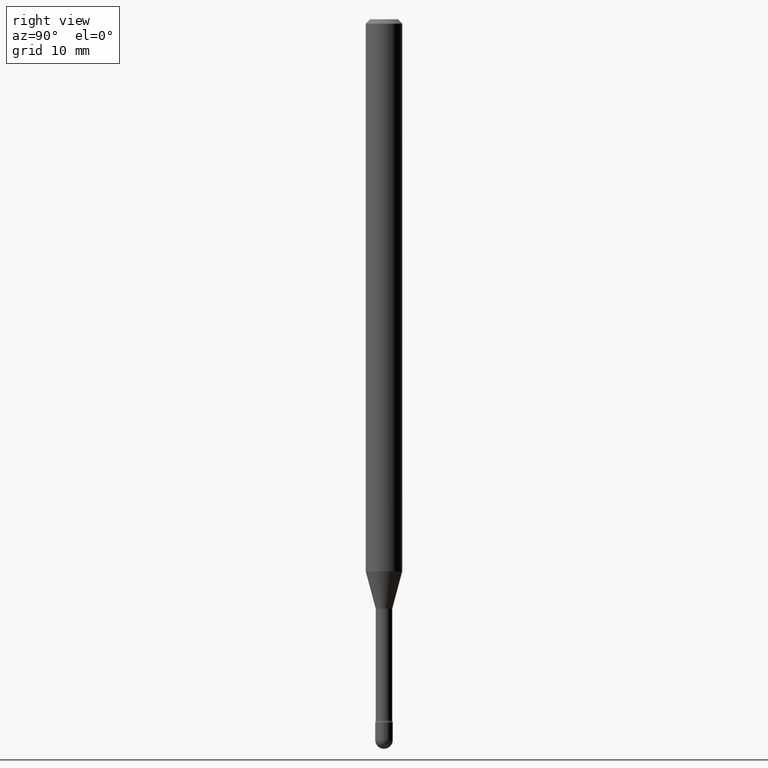
[diagram: clean part render]
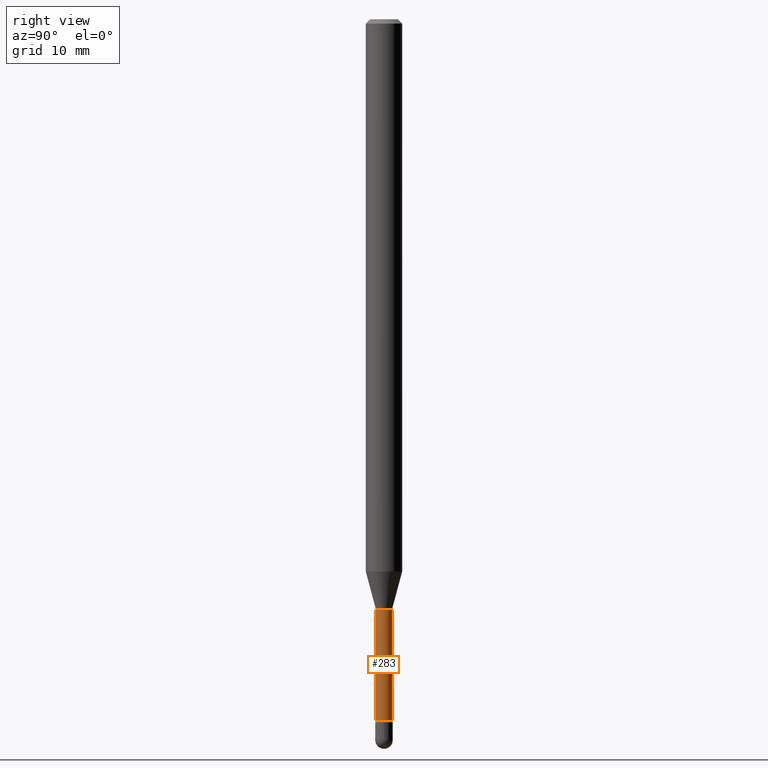
[diagram: same view with one face highlighted and labeled with its STEP entity id]
A machine part, right view. The second image highlights one B-rep face of the part: STEP entity #283.
In plain terms, the highlighted cylindrical surface (edge-blend (fillet) strip) has radius 0.7163 mm, axis along (-0, 0, 1).
Its self-contained STEP definition (entity closure, byte-faithful):
#5 = FACE_OUTER_BOUND ( 'NONE', #219, .T. ) ;
#12 = CARTESIAN_POINT ( 'NONE',  ( -1.169113584055446105E-44, 1.669184350826100908E-30, 4.780733988912460139E-16 ) ) ;
#14 = CYLINDRICAL_SURFACE ( 'NONE', #297, 0.02820000000000000631 ) ;
#23 = CARTESIAN_POINT ( 'NONE',  ( 2.067679361062481029E-16, 0.02819999999999163107, -2.402875394747777449 ) ) ;
#49 = VERTEX_POINT ( 'NONE', #77 ) ;
#64 = DIRECTION ( 'NONE',  ( -2.445510975464045356E-29, 3.491420950035621871E-15, 1.000000000000000000 ) ) ;
#77 = CARTESIAN_POINT ( 'NONE',  ( -1.969195475106940801E-16, -0.02820000000000840584, -2.402875394747777449 ) ) ;
#89 = ORIENTED_EDGE ( 'NONE', *, *, #430, .T. ) ;
#107 = DIRECTION ( 'NONE',  ( -2.445510975464045356E-29, 3.491420950035621871E-15, 1.000000000000000000 ) ) ;
#113 = VECTOR ( 'NONE', #64, 39.37007874015748143 ) ;
#122 = AXIS2_PLACEMENT_3D ( 'NONE', #284, #107, #510 ) ;
#126 = VERTEX_POINT ( 'NONE', #564 ) ;
#166 = CIRCLE ( 'NONE', #122, 0.02819999999999999243 ) ;
#179 = DIRECTION ( 'NONE',  ( -2.445510975464045356E-29, 3.491420950035621871E-15, 1.000000000000000000 ) ) ;
#189 = CIRCLE ( 'NONE', #298, 0.02820000000000002019 ) ;
#201 = ORIENTED_EDGE ( 'NONE', *, *, #337, .F. ) ;
#218 = LINE ( 'NONE', #536, #472 ) ;
#219 = EDGE_LOOP ( 'NONE', ( #366, #89, #201, #372 ) ) ;
#245 = EDGE_CURVE ( 'NONE', #49, #126, #218, .T. ) ;
#273 = CARTESIAN_POINT ( 'NONE',  ( 5.876258150528190096E-29, -8.389449493547505096E-15, -2.402875394747777449 ) ) ;
#283 = ADVANCED_FACE ( 'NONE', ( #5 ), #14, .T. ) ;
#284 = CARTESIAN_POINT ( 'NONE',  ( 4.944761534854330481E-29, -7.059565133394973090E-15, -2.021974787463811207 ) ) ;
#297 = AXIS2_PLACEMENT_3D ( 'NONE', #12, #179, #497 ) ;
#298 = AXIS2_PLACEMENT_3D ( 'NONE', #273, #367, #451 ) ;
#308 = VERTEX_POINT ( 'NONE', #357 ) ;
#337 = EDGE_CURVE ( 'NONE', #126, #308, #166, .T. ) ;
#357 = CARTESIAN_POINT ( 'NONE',  ( 2.003730514844070181E-16, 0.02819999999999293211, -2.021974787463811207 ) ) ;
#366 = ORIENTED_EDGE ( 'NONE', *, *, #475, .T. ) ;
#367 = DIRECTION ( 'NONE',  ( -2.445510975464045356E-29, 3.491420950035621871E-15, 1.000000000000000000 ) ) ;
#372 = ORIENTED_EDGE ( 'NONE', *, *, #245, .F. ) ;
#393 = DIRECTION ( 'NONE',  ( -2.445510975464045356E-29, 3.491420950035621871E-15, 1.000000000000000000 ) ) ;
#406 = CARTESIAN_POINT ( 'NONE',  ( 2.003730514843482726E-16, 0.02820000000000000631, 3.796153281002414986E-16 ) ) ;
#409 = LINE ( 'NONE', #406, #113 ) ;
#430 = EDGE_CURVE ( 'NONE', #465, #308, #409, .T. ) ;
#451 = DIRECTION ( 'NONE',  ( -6.982962677686265133E-15, -1.000000000000000000, 0.000000000000000000 ) ) ;
#465 = VERTEX_POINT ( 'NONE', #23 ) ;
#472 = VECTOR ( 'NONE', #393, 39.37007874015748143 ) ;
#475 = EDGE_CURVE ( 'NONE', #49, #465, #189, .T. ) ;
#497 = DIRECTION ( 'NONE',  ( -6.982962677686265133E-15, -1.000000000000000000, 3.491420950035621477E-15 ) ) ;
#510 = DIRECTION ( 'NONE',  ( -6.982962677686265133E-15, -1.000000000000000000, 0.000000000000000000 ) ) ;
#536 = CARTESIAN_POINT ( 'NONE',  ( -1.969195475107527270E-16, -0.02820000000000000631, 5.765314696822506278E-16 ) ) ;
#564 = CARTESIAN_POINT ( 'NONE',  ( -1.969195475107032013E-16, -0.02820000000000705276, -2.021974787463811207 ) ) ;